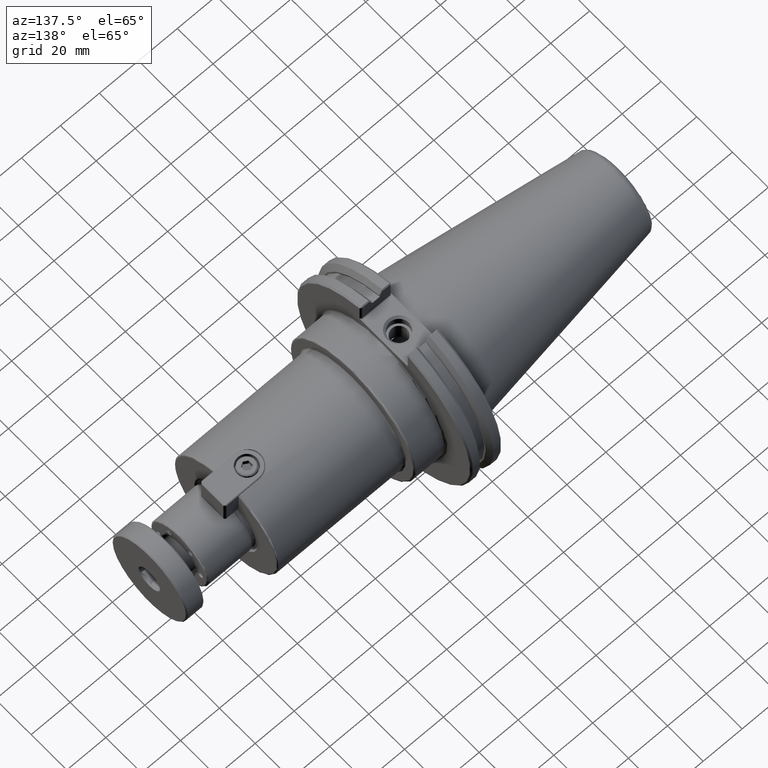
[diagram: clean part render]
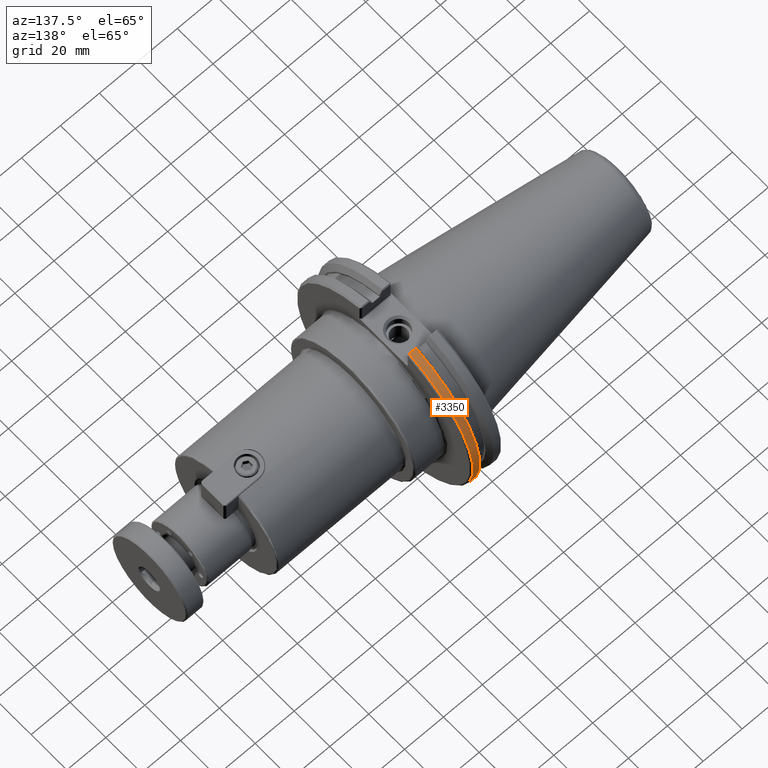
[diagram: same view with one face highlighted and labeled with its STEP entity id]
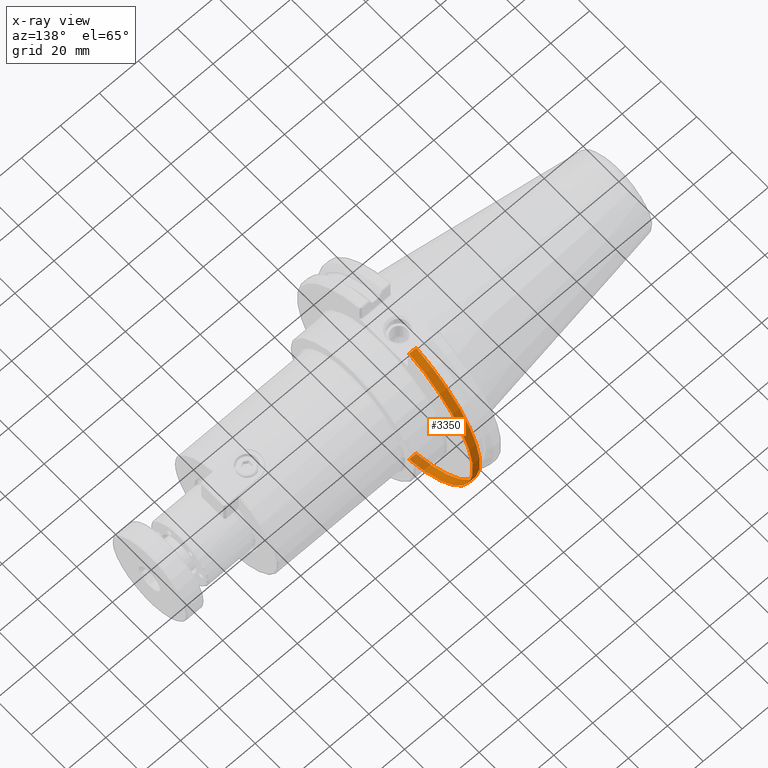
[diagram: x-ray of the same camera — body ghosted, the highlighted face saturated]
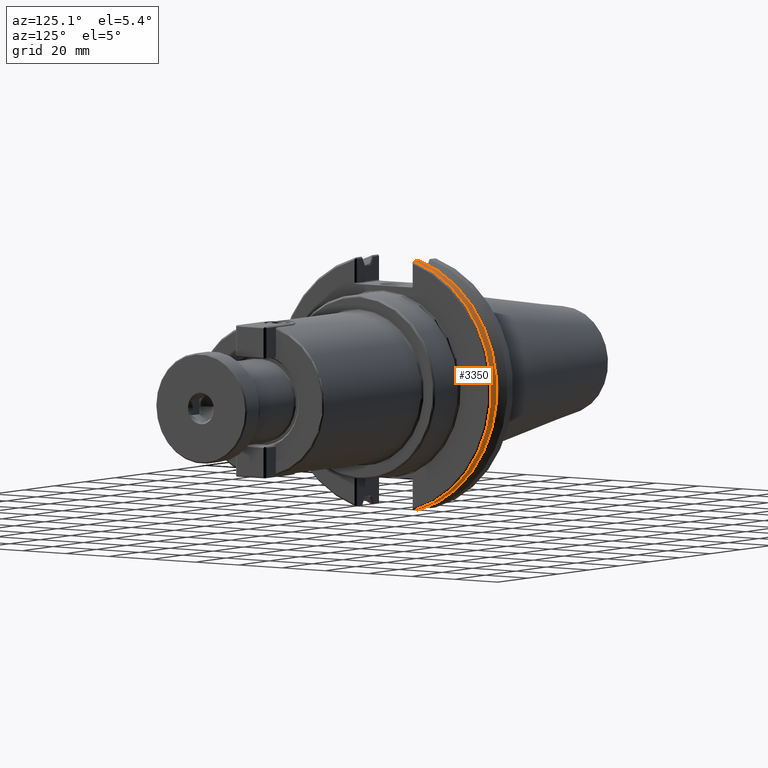
[diagram: same view with one face highlighted and labeled with its STEP entity id]
A machine part, auxiliary view. The second image highlights one B-rep face of the part: STEP entity #3350.
The next image is the same camera in x-ray: the body ghosted, the highlighted face saturated — about 9% of this face is hidden behind the body in this view.
A second angle (auxiliary view) of the same face is appended — the face is thin or edge-on in the first view.
In plain terms, the highlighted cylindrical surface (partial cylindrical patch) has radius 49.2125 mm, axis along (1, 0, 0).
Its self-contained STEP definition (entity closure, byte-faithful):
#406=FACE_OUTER_BOUND('',#606,.T.);
#606=EDGE_LOOP('',(#2698,#2699,#2700,#2701));
#799=CIRCLE('',#3790,1.9375);
#800=CIRCLE('',#3793,1.9375);
#924=LINE('',#6059,#1150);
#985=LINE('',#6645,#1211);
#1150=VECTOR('',#4302,0.393700787401575);
#1211=VECTOR('',#4501,0.393700787401575);
#1447=VERTEX_POINT('',#6054);
#1448=VERTEX_POINT('',#6058);
#1519=VERTEX_POINT('',#6640);
#1520=VERTEX_POINT('',#6644);
#1821=EDGE_CURVE('',#1447,#1448,#924,.T.);
#1940=EDGE_CURVE('',#1519,#1520,#985,.T.);
#1942=EDGE_CURVE('',#1520,#1447,#799,.T.);
#1945=EDGE_CURVE('',#1519,#1448,#800,.T.);
#2698=ORIENTED_EDGE('',*,*,#1940,.F.);
#2699=ORIENTED_EDGE('',*,*,#1945,.T.);
#2700=ORIENTED_EDGE('',*,*,#1821,.F.);
#2701=ORIENTED_EDGE('',*,*,#1942,.F.);
#3101=CYLINDRICAL_SURFACE('',#3792,1.9375);
#3350=ADVANCED_FACE('',(#406),#3101,.T.);
#3790=AXIS2_PLACEMENT_3D('',#6650,#4504,#4505);
#3792=AXIS2_PLACEMENT_3D('',#6657,#4509,#4510);
#3793=AXIS2_PLACEMENT_3D('',#6658,#4511,#4512);
#4302=DIRECTION('',(-1.,0.,0.));
#4501=DIRECTION('',(1.,0.,0.));
#4504=DIRECTION('center_axis',(1.,0.,0.));
#4505=DIRECTION('ref_axis',(-1.03378135458692E-13,1.,0.));
#4509=DIRECTION('center_axis',(1.,0.,0.));
#4510=DIRECTION('ref_axis',(-1.03378135458692E-13,1.,0.));
#4511=DIRECTION('center_axis',(1.,0.,0.));
#4512=DIRECTION('ref_axis',(-1.03378135458692E-13,1.,0.));
#6054=CARTESIAN_POINT('',(0.72,0.527075588370989,1.86442955730255));
#6058=CARTESIAN_POINT('',(0.57717387222665,0.527075588370989,1.86442955730255));
#6059=CARTESIAN_POINT('',(0.4375,0.527075588370989,1.86442955730255));
#6640=CARTESIAN_POINT('',(0.57717387222665,0.527075588371057,-1.86442955730253));
#6644=CARTESIAN_POINT('',(0.72,0.527075588371057,-1.86442955730253));
#6645=CARTESIAN_POINT('',(0.4375,0.527075588371057,-1.86442955730253));
#6650=CARTESIAN_POINT('Origin',(0.72,0.,0.));
#6657=CARTESIAN_POINT('Origin',(0.4375,0.,0.));
#6658=CARTESIAN_POINT('Origin',(0.57717387222665,0.,0.));